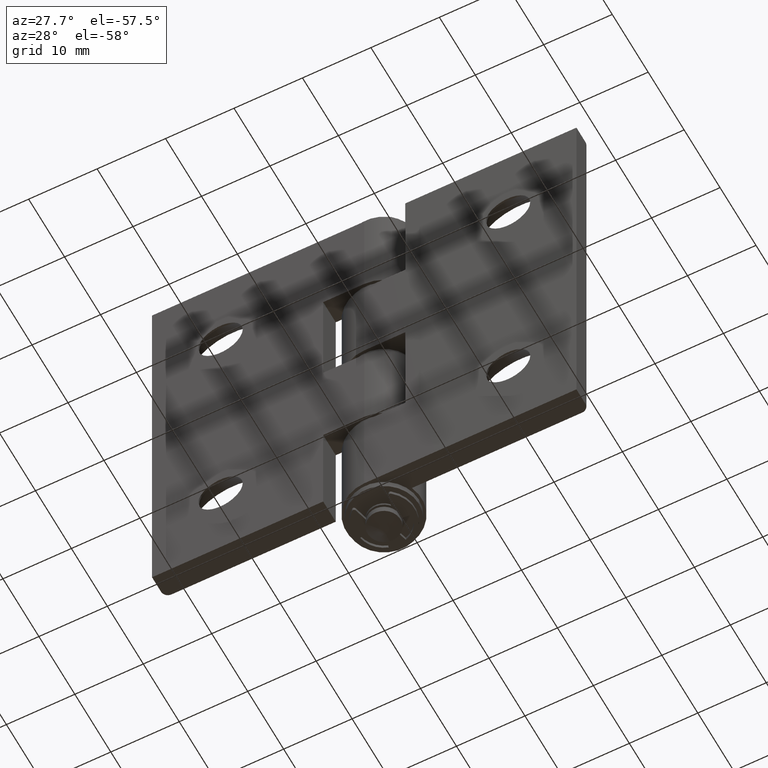
[diagram: clean part render]
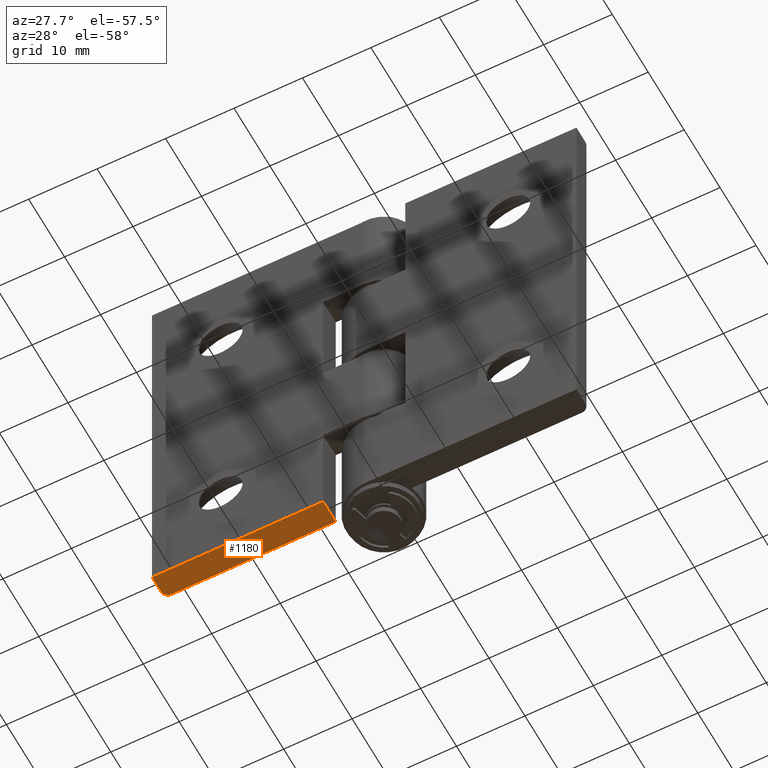
[diagram: same view with one face highlighted and labeled with its STEP entity id]
A machine part, auxiliary view. The second image highlights one B-rep face of the part: STEP entity #1180.
In plain terms, the highlighted planar face has unit normal (0, 0, -1).
Its self-contained STEP definition (entity closure, byte-faithful):
#129=PLANE('',#1264);
#167=FACE_OUTER_BOUND('',#242,.T.);
#242=EDGE_LOOP('',(#858,#859,#860,#861,#862));
#364=LINE('',#1831,#444);
#367=LINE('',#1837,#447);
#368=LINE('',#1839,#448);
#369=LINE('',#1840,#449);
#444=VECTOR('',#1431,2.5);
#447=VECTOR('',#1436,24.);
#448=VECTOR('',#1437,3.5);
#449=VECTOR('',#1438,25.);
#522=CIRCLE('',#1261,1.);
#590=VERTEX_POINT('',#1821);
#591=VERTEX_POINT('',#1822);
#594=VERTEX_POINT('',#1830);
#596=VERTEX_POINT('',#1836);
#597=VERTEX_POINT('',#1838);
#702=EDGE_CURVE('',#590,#591,#522,.T.);
#706=EDGE_CURVE('',#594,#591,#364,.T.);
#709=EDGE_CURVE('',#590,#596,#367,.T.);
#710=EDGE_CURVE('',#596,#597,#368,.T.);
#711=EDGE_CURVE('',#597,#594,#369,.T.);
#858=ORIENTED_EDGE('',*,*,#702,.F.);
#859=ORIENTED_EDGE('',*,*,#709,.T.);
#860=ORIENTED_EDGE('',*,*,#710,.T.);
#861=ORIENTED_EDGE('',*,*,#711,.T.);
#862=ORIENTED_EDGE('',*,*,#706,.T.);
#1180=ADVANCED_FACE('',(#167),#129,.T.);
#1261=AXIS2_PLACEMENT_3D('',#1823,#1423,#1424);
#1264=AXIS2_PLACEMENT_3D('',#1835,#1434,#1435);
#1423=DIRECTION('center_axis',(0.,0.,1.));
#1424=DIRECTION('ref_axis',(-0.707106781186546,0.707106781186549,0.));
#1431=DIRECTION('',(0.,1.,0.));
#1434=DIRECTION('center_axis',(0.,0.,-1.));
#1435=DIRECTION('ref_axis',(-1.,0.,0.));
#1436=DIRECTION('',(1.,2.50695521689551E-16,0.));
#1437=DIRECTION('',(0.,-1.,0.));
#1438=DIRECTION('',(-1.,-1.07440937866951E-16,0.));
#1821=CARTESIAN_POINT('',(-30.,3.49999999999999,-63.));
#1822=CARTESIAN_POINT('',(-31.,2.49999999999999,-63.));
#1823=CARTESIAN_POINT('Origin',(-30.,2.49999999999999,-63.));
#1830=CARTESIAN_POINT('',(-31.,-3.33066907387547E-15,-63.));
#1831=CARTESIAN_POINT('',(-31.,-3.33066907387547E-15,-63.));
#1835=CARTESIAN_POINT('Origin',(-15.5,1.75,-63.));
#1836=CARTESIAN_POINT('',(-6.,3.5,-63.));
#1837=CARTESIAN_POINT('',(-31.,3.49999999999999,-63.));
#1838=CARTESIAN_POINT('',(-6.,0.,-63.));
#1839=CARTESIAN_POINT('',(-6.00000000000001,0.874999999999999,-63.));
#1840=CARTESIAN_POINT('',(0.,0.,-63.));